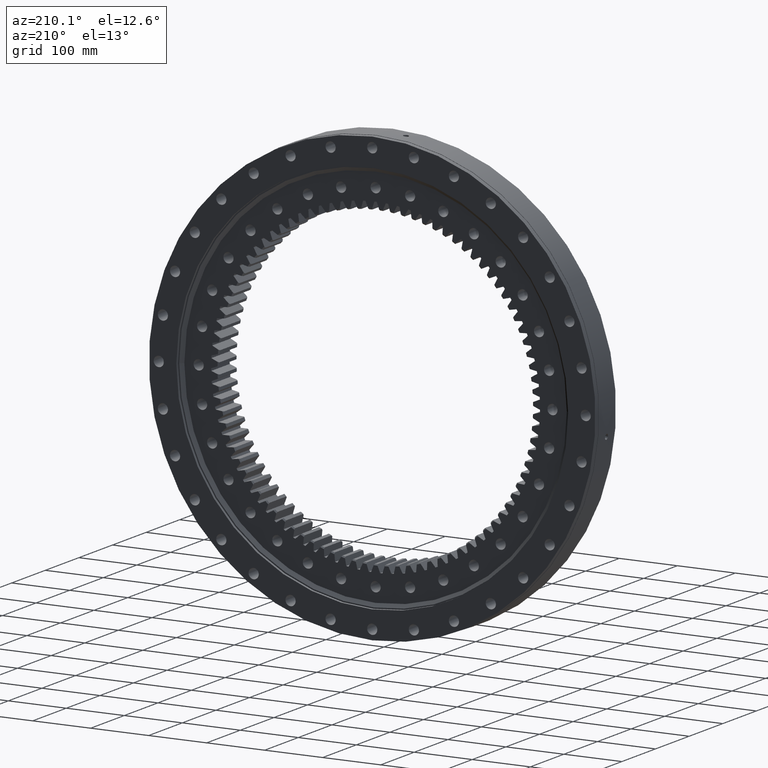
[diagram: clean part render]
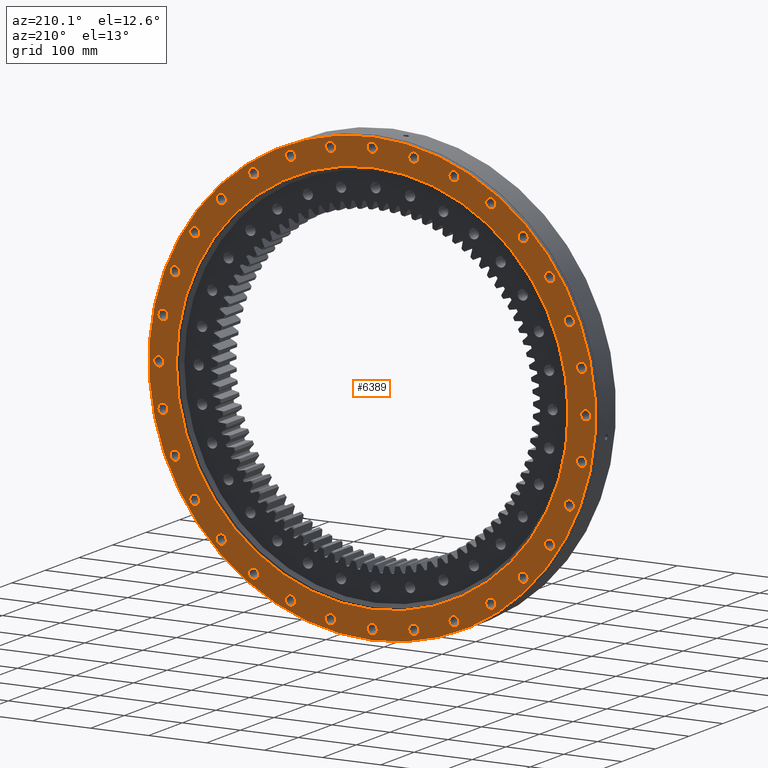
[diagram: same view with one face highlighted and labeled with its STEP entity id]
A machine part, auxiliary view. The second image highlights one B-rep face of the part: STEP entity #6389.
In plain terms, the highlighted planar face has unit normal (0, -1, -0).
Its self-contained STEP definition (entity closure, byte-faithful):
#53 = EDGE_CURVE ( 'NONE', #15093, #7583, #17355, .T. ) ;
#57 = AXIS2_PLACEMENT_3D ( 'NONE', #26071, #26327, #21889 ) ;
#61 = DIRECTION ( 'NONE',  ( 1.173697223544192200E-016, -1.000000000000000000, -3.494217355385783800E-017 ) ) ;
#120 = ORIENTED_EDGE ( 'NONE', *, *, #18874, .T. ) ;
#198 = CIRCLE ( 'NONE', #5928, 8.749999999999985800 ) ;
#425 = VERTEX_POINT ( 'NONE', #16326 ) ;
#427 = VERTEX_POINT ( 'NONE', #26651 ) ;
#432 = AXIS2_PLACEMENT_3D ( 'NONE', #5036, #21108, #14850 ) ;
#479 = DIRECTION ( 'NONE',  ( 1.173697223544192200E-016, -1.000000000000000000, -3.494217355385783800E-017 ) ) ;
#532 = CARTESIAN_POINT ( 'NONE',  ( -305.9808173273355000, 35.00000000000001400, -204.4498457512152600 ) ) ;
#573 = DIRECTION ( 'NONE',  ( 1.173697223544192200E-016, -1.000000000000000000, -3.494217355385783800E-017 ) ) ;
#624 = CARTESIAN_POINT ( 'NONE',  ( 339.9876679641550400, 35.00000000000009200, -140.8275031103496500 ) ) ;
#656 = DIRECTION ( 'NONE',  ( 0.1950903220161289100, 0.0000000000000000000, 0.9807852804032304300 ) ) ;
#661 = VERTEX_POINT ( 'NONE', #23640 ) ;
#674 = DIRECTION ( 'NONE',  ( -0.3826834323650777900, 0.0000000000000000000, 0.9238795325112918500 ) ) ;
#681 = DIRECTION ( 'NONE',  ( 1.173697223544192200E-016, -1.000000000000000000, -3.494217355385783800E-017 ) ) ;
#691 = EDGE_LOOP ( 'NONE', ( #15646, #1943 ) ) ;
#692 = DIRECTION ( 'NONE',  ( -0.8314696123025503400, 0.0000000000000000000, -0.5555702330195945200 ) ) ;
#718 = CARTESIAN_POINT ( 'NONE',  ( -305.9808173273371500, 35.00000000000000000, 204.4498457512128500 ) ) ;
#779 = CARTESIAN_POINT ( 'NONE',  ( -204.4498457512142100, 35.00000000000000700, 305.9808173273361800 ) ) ;
#792 = CARTESIAN_POINT ( 'NONE',  ( -71.79323850193253500, 35.00000000000005000, -369.6789831883893400 ) ) ;
#805 = CIRCLE ( 'NONE', #16883, 8.750000000000003600 ) ;
#818 = DIRECTION ( 'NONE',  ( 1.173697223544192200E-016, -1.000000000000000000, -3.494217355385783800E-017 ) ) ;
#838 = CARTESIAN_POINT ( 'NONE',  ( -260.2152954766500600, 35.00000000000000700, 268.9652954766488600 ) ) ;
#909 = DIRECTION ( 'NONE',  ( -0.8314696123025391300, 0.0000000000000000000, 0.5555702330196112800 ) ) ;
#963 = VERTEX_POINT ( 'NONE', #15752 ) ;
#1026 = DIRECTION ( 'NONE',  ( 1.173697223544192200E-016, -1.000000000000000000, -3.494217355385783800E-017 ) ) ;
#1053 = AXIS2_PLACEMENT_3D ( 'NONE', #15140, #18880, #18968 ) ;
#1091 = CIRCLE ( 'NONE', #7674, 8.749999999999980500 ) ;
#1126 = DIRECTION ( 'NONE',  ( -0.5555702330195923000, 0.0000000000000000000, 0.8314696123025517900 ) ) ;
#1138 = CARTESIAN_POINT ( 'NONE',  ( 71.79323850193803500, 35.00000000000006400, -352.1789831883882600 ) ) ;
#1339 = CARTESIAN_POINT ( 'NONE',  ( -314.7308173273371500, 35.00000000000000000, 204.4498457512128500 ) ) ;
#1351 = VERTEX_POINT ( 'NONE', #19757 ) ;
#1429 = CIRCLE ( 'NONE', #17254, 8.749999999999980500 ) ;
#1653 = DIRECTION ( 'NONE',  ( 1.173697223544192200E-016, -1.000000000000000000, -3.494217355385783800E-017 ) ) ;
#1703 = CARTESIAN_POINT ( 'NONE',  ( 204.4498457512096400, 35.00000000000005000, 297.2308173273394800 ) ) ;
#1713 = EDGE_CURVE ( 'NONE', #6237, #18403, #17241, .T. ) ;
#1726 = DIRECTION ( 'NONE',  ( -0.9807852804032324300, 0.0000000000000000000, -0.1950903220161182000 ) ) ;
#1763 = DIRECTION ( 'NONE',  ( 1.173697223544192200E-016, -1.000000000000000000, -3.494217355385783800E-017 ) ) ;
#1767 = CARTESIAN_POINT ( 'NONE',  ( -360.9289831883884300, 35.00000000000000000, -71.79323850193672700 ) ) ;
#1774 = CARTESIAN_POINT ( 'NONE',  ( -5.340505930445682100E-012, 35.00000000000002800, 368.0000000000000000 ) ) ;
#1856 = AXIS2_PLACEMENT_3D ( 'NONE', #21050, #7080, #6695 ) ;
#1943 = ORIENTED_EDGE ( 'NONE', *, *, #17349, .T. ) ;
#2014 = AXIS2_PLACEMENT_3D ( 'NONE', #11977, #12079, #12027 ) ;
#2022 = ORIENTED_EDGE ( 'NONE', *, *, #12074, .T. ) ;
#2092 = EDGE_LOOP ( 'NONE', ( #14915, #2678 ) ) ;
#2099 = DIRECTION ( 'NONE',  ( 5.551115123125782700E-017, -3.604620209821936800E-017, 1.000000000000000000 ) ) ;
#2166 = DIRECTION ( 'NONE',  ( -1.173697223544192200E-016, 1.000000000000000000, 3.494217355385783800E-017 ) ) ;
#2284 = AXIS2_PLACEMENT_3D ( 'NONE', #14309, #17214, #17455 ) ;
#2293 = DIRECTION ( 'NONE',  ( 1.173697223544192200E-016, -1.000000000000000000, -3.494217355385783800E-017 ) ) ;
#2314 = CARTESIAN_POINT ( 'NONE',  ( 297.2308173273386300, 35.00000000000008500, -204.4498457512107200 ) ) ;
#2345 = CARTESIAN_POINT ( 'NONE',  ( -4.107940282404677800E-015, 35.00000000000004300, -1.683012835122259200E-016 ) ) ;
#2357 = CARTESIAN_POINT ( 'NONE',  ( 369.6789831883879700, 35.00000000000008500, 71.79323850193934200 ) ) ;
#2398 = AXIS2_PLACEMENT_3D ( 'NONE', #4045, #16458, #23013 ) ;
#2406 = EDGE_CURVE ( 'NONE', #7583, #15093, #14368, .T. ) ;
#2455 = VERTEX_POINT ( 'NONE', #23734 ) ;
#2464 = EDGE_CURVE ( 'NONE', #12967, #6723, #1091, .T. ) ;
#2518 = AXIS2_PLACEMENT_3D ( 'NONE', #10934, #11024, #11113 ) ;
#2523 = CIRCLE ( 'NONE', #13008, 8.749999999999980500 ) ;
#2565 = CIRCLE ( 'NONE', #13291, 8.749999999999998200 ) ;
#2607 = AXIS2_PLACEMENT_3D ( 'NONE', #624, #7112, #25419 ) ;
#2616 = CARTESIAN_POINT ( 'NONE',  ( 368.0000000000000000, 35.00000000000008500, 4.052755833543389800E-012 ) ) ;
#2678 = ORIENTED_EDGE ( 'NONE', *, *, #8153, .T. ) ;
#2741 = CIRCLE ( 'NONE', #24836, 8.750000000000021300 ) ;
#2792 = VERTEX_POINT ( 'NONE', #14258 ) ;
#2811 = AXIS2_PLACEMENT_3D ( 'NONE', #10122, #10119, #10090 ) ;
#2917 = CIRCLE ( 'NONE', #26176, 8.749999999999980500 ) ;
#2935 = ORIENTED_EDGE ( 'NONE', *, *, #5127, .T. ) ;
#3104 = ORIENTED_EDGE ( 'NONE', *, *, #15804, .T. ) ;
#3236 = CARTESIAN_POINT ( 'NONE',  ( -5.340505930445682100E-012, 35.00000000000002800, 368.0000000000000000 ) ) ;
#3280 = AXIS2_PLACEMENT_3D ( 'NONE', #23575, #16074, #18110 ) ;
#3304 = DIRECTION ( 'NONE',  ( 1.173697223544192200E-016, -1.000000000000000000, -3.494217355385783800E-017 ) ) ;
#3306 = CIRCLE ( 'NONE', #432, 8.750000000000017800 ) ;
#3307 = DIRECTION ( 'NONE',  ( 5.551115123129761500E-017, 0.0000000000000000000, 1.000000000000000000 ) ) ;
#3360 = CIRCLE ( 'NONE', #11993, 8.749999999999978700 ) ;
#3441 = ORIENTED_EDGE ( 'NONE', *, *, #16510, .T. ) ;
#3514 = AXIS2_PLACEMENT_3D ( 'NONE', #24696, #24160, #11606 ) ;
#3537 = ORIENTED_EDGE ( 'NONE', *, *, #2464, .T. ) ;
#3540 = EDGE_CURVE ( 'NONE', #6723, #12967, #22649, .T. ) ;
#3638 = AXIS2_PLACEMENT_3D ( 'NONE', #8151, #8158, #8186 ) ;
#3669 = CARTESIAN_POINT ( 'NONE',  ( 297.2308173273341400, 35.00000000000007100, 204.4498457512173700 ) ) ;
#3754 = AXIS2_PLACEMENT_3D ( 'NONE', #18465, #18409, #18373 ) ;
#3762 = DIRECTION ( 'NONE',  ( 1.173697223544192200E-016, -1.000000000000000000, -3.494217355385783800E-017 ) ) ;
#3827 = VERTEX_POINT ( 'NONE', #8056 ) ;
#3862 = DIRECTION ( 'NONE',  ( 1.173697223544192200E-016, -1.000000000000000000, -3.494217355385783800E-017 ) ) ;
#3890 = VERTEX_POINT ( 'NONE', #10471 ) ;
#3908 = AXIS2_PLACEMENT_3D ( 'NONE', #15667, #15700, #15759 ) ;
#3980 = EDGE_LOOP ( 'NONE', ( #15338, #26232 ) ) ;
#4015 = CARTESIAN_POINT ( 'NONE',  ( -305.9808173273371500, 35.00000000000000000, 204.4498457512128500 ) ) ;
#4045 = CARTESIAN_POINT ( 'NONE',  ( 140.8275031103484600, 35.00000000000004300, 339.9876679641555500 ) ) ;
#4066 = EDGE_CURVE ( 'NONE', #18403, #6237, #20520, .T. ) ;
#4088 = CARTESIAN_POINT ( 'NONE',  ( -204.4498457512142100, 35.00000000000000700, 305.9808173273361800 ) ) ;
#4100 = DIRECTION ( 'NONE',  ( 1.173697223544192200E-016, -1.000000000000000000, -3.494217355385783800E-017 ) ) ;
#4107 = DIRECTION ( 'NONE',  ( 1.173697223544192200E-016, -1.000000000000000000, -3.494217355385783800E-017 ) ) ;
#4114 = ORIENTED_EDGE ( 'NONE', *, *, #12952, .T. ) ;
#4168 = DIRECTION ( 'NONE',  ( 0.5555702330195967400, 0.0000000000000000000, -0.8314696123025490100 ) ) ;
#4173 = DIRECTION ( 'NONE',  ( -0.5555702330195923000, 0.0000000000000000000, 0.8314696123025517900 ) ) ;
#4176 = CIRCLE ( 'NONE', #8125, 8.750000000000000000 ) ;
#4223 = EDGE_CURVE ( 'NONE', #22547, #13693, #19752, .T. ) ;
#4287 = DIRECTION ( 'NONE',  ( 1.173697223544192200E-016, -1.000000000000000000, -3.494217355385783800E-017 ) ) ;
#4290 = DIRECTION ( 'NONE',  ( -0.8314696123025391300, 0.0000000000000000000, 0.5555702330196112800 ) ) ;
#4358 = DIRECTION ( 'NONE',  ( -0.9238795325112907400, 0.0000000000000000000, -0.3826834323650805100 ) ) ;
#4359 = ORIENTED_EDGE ( 'NONE', *, *, #19890, .T. ) ;
#4380 = CARTESIAN_POINT ( 'NONE',  ( -140.8275031103533200, 35.00000000000001400, 339.9876679641533900 ) ) ;
#4399 = CARTESIAN_POINT ( 'NONE',  ( 260.2152954766461900, 35.00000000000006400, 260.2152954766528400 ) ) ;
#4458 = DIRECTION ( 'NONE',  ( 1.173697223544192200E-016, -1.000000000000000000, -3.494217355385783800E-017 ) ) ;
#4491 = CARTESIAN_POINT ( 'NONE',  ( -339.9876679641529300, 35.00000000000000700, -140.8275031103545400 ) ) ;
#4495 = DIRECTION ( 'NONE',  ( 1.173697223544192200E-016, -1.000000000000000000, -3.494217355385783800E-017 ) ) ;
#4521 = AXIS2_PLACEMENT_3D ( 'NONE', #18118, #1653, #16083 ) ;
#4588 = DIRECTION ( 'NONE',  ( 0.7071067811865474600, 0.0000000000000000000, 0.7071067811865474600 ) ) ;
#4592 = VERTEX_POINT ( 'NONE', #25753 ) ;
#4648 = AXIS2_PLACEMENT_3D ( 'NONE', #14497, #14672, #14761 ) ;
#4690 = CARTESIAN_POINT ( 'NONE',  ( -260.2152954766479500, 35.00000000000002100, -260.2152954766510200 ) ) ;
#4741 = CIRCLE ( 'NONE', #3514, 8.750000000000001800 ) ;
#4807 = EDGE_LOOP ( 'NONE', ( #26279, #20529 ) ) ;
#4843 = CARTESIAN_POINT ( 'NONE',  ( 71.79323850193014800, 35.00000000000003600, 369.6789831883898500 ) ) ;
#5036 = CARTESIAN_POINT ( 'NONE',  ( 305.9808173273386300, 35.00000000000008500, -204.4498457512107200 ) ) ;
#5043 = CIRCLE ( 'NONE', #9638, 8.750000000000001800 ) ;
#5045 = CIRCLE ( 'NONE', #11208, 8.749999999999998200 ) ;
#5116 = EDGE_LOOP ( 'NONE', ( #12910, #21066 ) ) ;
#5127 = EDGE_CURVE ( 'NONE', #12317, #2792, #15766, .T. ) ;
#5131 = CARTESIAN_POINT ( 'NONE',  ( 71.79323850193013400, 35.00000000000003600, 360.9289831883899100 ) ) ;
#5367 = EDGE_CURVE ( 'NONE', #11601, #23307, #14810, .T. ) ;
#5550 = VERTEX_POINT ( 'NONE', #12838 ) ;
#5552 = EDGE_CURVE ( 'NONE', #22837, #24627, #13559, .T. ) ;
#5640 = VERTEX_POINT ( 'NONE', #11586 ) ;
#5655 = AXIS2_PLACEMENT_3D ( 'NONE', #23060, #16493, #16002 ) ;
#5842 = AXIS2_PLACEMENT_3D ( 'NONE', #3236, #3304, #3307 ) ;
#5928 = AXIS2_PLACEMENT_3D ( 'NONE', #11265, #15358, #11583 ) ;
#5948 = CARTESIAN_POINT ( 'NONE',  ( 71.79323850193014800, 35.00000000000003600, 352.1789831883899100 ) ) ;
#6027 = CARTESIAN_POINT ( 'NONE',  ( -204.4498457512142100, 35.00000000000000700, 314.7308173273361300 ) ) ;
#6204 = CIRCLE ( 'NONE', #2607, 8.750000000000010700 ) ;
#6237 = VERTEX_POINT ( 'NONE', #14896 ) ;
#6343 = CARTESIAN_POINT ( 'NONE',  ( 204.4498457512163700, 35.00000000000007800, -305.9808173273347100 ) ) ;
#6389 = ADVANCED_FACE ( 'NONE', ( #8267, #8162, #8243, #8012, #7990, #8189, #7964, #7944, #7919, #7887, #7864, #7782, #7756, #7655, #7634, #7609, #7602, #7582, #7555, #7532, #7480, #7457, #7378, #7326, #7305, #7273, #7246, #7217, #7132, #7039, #7016, #6972, #6964, #6935 ), #22797, .F. ) ;
#6446 = EDGE_LOOP ( 'NONE', ( #7560, #8099 ) ) ;
#6559 = ORIENTED_EDGE ( 'NONE', *, *, #5552, .T. ) ;
#6617 = EDGE_LOOP ( 'NONE', ( #12448, #23144 ) ) ;
#6673 = DIRECTION ( 'NONE',  ( 5.551115123129761500E-017, 0.0000000000000000000, 1.000000000000000000 ) ) ;
#6683 = AXIS2_PLACEMENT_3D ( 'NONE', #18795, #18824, #18860 ) ;
#6695 = DIRECTION ( 'NONE',  ( 0.1950903220161212500, 0.0000000000000000000, -0.9807852804032317600 ) ) ;
#6723 = VERTEX_POINT ( 'NONE', #9769 ) ;
#6762 = AXIS2_PLACEMENT_3D ( 'NONE', #4380, #4287, #674 ) ;
#6797 = VERTEX_POINT ( 'NONE', #24272 ) ;
#6820 = CARTESIAN_POINT ( 'NONE',  ( 348.7376679641518000, 35.00000000000007800, 140.8275031103570400 ) ) ;
#6872 = CIRCLE ( 'NONE', #6762, 8.750000000000008900 ) ;
#6916 = ORIENTED_EDGE ( 'NONE', *, *, #19732, .T. ) ;
#6935 = FACE_BOUND ( 'NONE', #10656, .T. ) ;
#6964 = FACE_OUTER_BOUND ( 'NONE', #22256, .T. ) ;
#6972 = FACE_BOUND ( 'NONE', #17122, .T. ) ;
#7005 = VERTEX_POINT ( 'NONE', #23642 ) ;
#7016 = FACE_BOUND ( 'NONE', #16572, .T. ) ;
#7039 = FACE_BOUND ( 'NONE', #24473, .T. ) ;
#7079 = AXIS2_PLACEMENT_3D ( 'NONE', #1774, #2293, #6673 ) ;
#7080 = DIRECTION ( 'NONE',  ( 1.173697223544192200E-016, -1.000000000000000000, -3.494217355385783800E-017 ) ) ;
#7084 = CARTESIAN_POINT ( 'NONE',  ( 331.2376679641550400, 35.00000000000009200, -140.8275031103496500 ) ) ;
#7095 = CARTESIAN_POINT ( 'NONE',  ( -204.4498457512118300, 35.00000000000003600, -305.9808173273379500 ) ) ;
#7112 = DIRECTION ( 'NONE',  ( 1.173697223544192200E-016, -1.000000000000000000, -3.494217355385783800E-017 ) ) ;
#7132 = FACE_BOUND ( 'NONE', #11230, .T. ) ;
#7188 = AXIS2_PLACEMENT_3D ( 'NONE', #718, #818, #909 ) ;
#7217 = FACE_BOUND ( 'NONE', #16542, .T. ) ;
#7219 = VERTEX_POINT ( 'NONE', #1339 ) ;
#7246 = FACE_BOUND ( 'NONE', #2092, .T. ) ;
#7262 = CIRCLE ( 'NONE', #21322, 8.750000000000019500 ) ;
#7273 = FACE_BOUND ( 'NONE', #17965, .T. ) ;
#7305 = FACE_BOUND ( 'NONE', #4807, .T. ) ;
#7308 = ORIENTED_EDGE ( 'NONE', *, *, #20139, .T. ) ;
#7326 = FACE_BOUND ( 'NONE', #10569, .T. ) ;
#7341 = CARTESIAN_POINT ( 'NONE',  ( 1.726385294162958600E-014, 35.00000000000002800, 385.0000000000000000 ) ) ;
#7378 = FACE_BOUND ( 'NONE', #3980, .T. ) ;
#7444 = AXIS2_PLACEMENT_3D ( 'NONE', #4088, #4100, #4173 ) ;
#7457 = FACE_BOUND ( 'NONE', #24469, .T. ) ;
#7480 = FACE_BOUND ( 'NONE', #17295, .T. ) ;
#7532 = FACE_BOUND ( 'NONE', #22795, .T. ) ;
#7555 = FACE_BOUND ( 'NONE', #26475, .T. ) ;
#7560 = ORIENTED_EDGE ( 'NONE', *, *, #26686, .T. ) ;
#7573 = CIRCLE ( 'NONE', #19949, 8.750000000000001800 ) ;
#7582 = FACE_BOUND ( 'NONE', #6617, .T. ) ;
#7583 = VERTEX_POINT ( 'NONE', #12848 ) ;
#7602 = FACE_BOUND ( 'NONE', #24268, .T. ) ;
#7609 = FACE_BOUND ( 'NONE', #13281, .T. ) ;
#7618 = CARTESIAN_POINT ( 'NONE',  ( -251.4652954766479800, 35.00000000000002100, -260.2152954766510200 ) ) ;
#7634 = FACE_BOUND ( 'NONE', #12120, .T. ) ;
#7655 = FACE_BOUND ( 'NONE', #24490, .T. ) ;
#7669 = DIRECTION ( 'NONE',  ( -0.3826834323650962800, 0.0000000000000000000, -0.9238795325112840700 ) ) ;
#7674 = AXIS2_PLACEMENT_3D ( 'NONE', #15691, #15675, #15639 ) ;
#7726 = CARTESIAN_POINT ( 'NONE',  ( 368.0000000000000000, 35.00000000000008500, 4.052755833543389800E-012 ) ) ;
#7747 = DIRECTION ( 'NONE',  ( 1.173697223544192200E-016, -1.000000000000000000, -3.494217355385783800E-017 ) ) ;
#7756 = FACE_BOUND ( 'NONE', #17853, .T. ) ;
#7770 = DIRECTION ( 'NONE',  ( 1.000000000000000000, 0.0000000000000000000, -3.546992490074357700E-015 ) ) ;
#7782 = FACE_BOUND ( 'NONE', #16190, .T. ) ;
#7864 = FACE_BOUND ( 'NONE', #6446, .T. ) ;
#7865 = ORIENTED_EDGE ( 'NONE', *, *, #53, .T. ) ;
#7873 = AXIS2_PLACEMENT_3D ( 'NONE', #26596, #26614, #23300 ) ;
#7887 = FACE_BOUND ( 'NONE', #5116, .T. ) ;
#7919 = FACE_BOUND ( 'NONE', #10196, .T. ) ;
#7944 = FACE_BOUND ( 'NONE', #10071, .T. ) ;
#7964 = FACE_BOUND ( 'NONE', #9724, .T. ) ;
#7970 = VERTEX_POINT ( 'NONE', #5948 ) ;
#7974 = DIRECTION ( 'NONE',  ( 1.000000000000000000, 0.0000000000000000000, -3.546992490074357700E-015 ) ) ;
#7990 = FACE_BOUND ( 'NONE', #17809, .T. ) ;
#8012 = FACE_BOUND ( 'NONE', #14043, .T. ) ;
#8056 = CARTESIAN_POINT ( 'NONE',  ( -348.7376679641540700, 34.99999999999999300, 140.8275031103518400 ) ) ;
#8061 = CARTESIAN_POINT ( 'NONE',  ( 260.2152954766518700, 35.00000000000007800, -251.4652954766471000 ) ) ;
#8099 = ORIENTED_EDGE ( 'NONE', *, *, #13828, .T. ) ;
#8125 = AXIS2_PLACEMENT_3D ( 'NONE', #24944, #9520, #21537 ) ;
#8151 = CARTESIAN_POINT ( 'NONE',  ( 260.2152954766461900, 35.00000000000006400, 260.2152954766528400 ) ) ;
#8153 = EDGE_CURVE ( 'NONE', #12273, #12827, #19814, .T. ) ;
#8155 = CIRCLE ( 'NONE', #8522, 8.750000000000021300 ) ;
#8158 = DIRECTION ( 'NONE',  ( 1.173697223544192200E-016, -1.000000000000000000, -3.494217355385783800E-017 ) ) ;
#8162 = FACE_BOUND ( 'NONE', #8880, .T. ) ;
#8186 = DIRECTION ( 'NONE',  ( 0.7071067811865474600, 0.0000000000000000000, 0.7071067811865474600 ) ) ;
#8189 = FACE_BOUND ( 'NONE', #691, .T. ) ;
#8243 = FACE_BOUND ( 'NONE', #8771, .T. ) ;
#8260 = CARTESIAN_POINT ( 'NONE',  ( -376.7500000000000000, 35.00000000000000000, -1.480070592690161200E-012 ) ) ;
#8267 = FACE_BOUND ( 'NONE', #11945, .T. ) ;
#8425 = CIRCLE ( 'NONE', #11453, 8.749999999999991100 ) ;
#8427 = CIRCLE ( 'NONE', #17265, 8.749999999999998200 ) ;
#8522 = AXIS2_PLACEMENT_3D ( 'NONE', #20588, #681, #7669 ) ;
#8569 = CARTESIAN_POINT ( 'NONE',  ( 339.9876679641550400, 35.00000000000009200, -140.8275031103496500 ) ) ;
#8736 = CIRCLE ( 'NONE', #4648, 8.750000000000016000 ) ;
#8771 = EDGE_LOOP ( 'NONE', ( #9801, #18423 ) ) ;
#8796 = VERTEX_POINT ( 'NONE', #16675 ) ;
#8804 = CIRCLE ( 'NONE', #24271, 8.750000000000019500 ) ;
#8863 = CARTESIAN_POINT ( 'NONE',  ( -260.2152954766500600, 35.00000000000000700, 251.4652954766489200 ) ) ;
#8880 = EDGE_LOOP ( 'NONE', ( #26164, #15540 ) ) ;
#8975 = VERTEX_POINT ( 'NONE', #24439 ) ;
#9031 = VERTEX_POINT ( 'NONE', #13446 ) ;
#9092 = VERTEX_POINT ( 'NONE', #13154 ) ;
#9114 = VERTEX_POINT ( 'NONE', #8260 ) ;
#9199 = ORIENTED_EDGE ( 'NONE', *, *, #21505, .T. ) ;
#9236 = CARTESIAN_POINT ( 'NONE',  ( 2.764523587640431800E-012, 35.00000000000005700, -376.7500000000000000 ) ) ;
#9266 = CIRCLE ( 'NONE', #3638, 8.749999999999998200 ) ;
#9450 = VERTEX_POINT ( 'NONE', #10046 ) ;
#9520 = DIRECTION ( 'NONE',  ( 1.173697223544192200E-016, -1.000000000000000000, -3.494217355385783800E-017 ) ) ;
#9562 = EDGE_CURVE ( 'NONE', #13693, #22547, #8425, .T. ) ;
#9590 = ORIENTED_EDGE ( 'NONE', *, *, #26028, .T. ) ;
#9638 = AXIS2_PLACEMENT_3D ( 'NONE', #532, #573, #692 ) ;
#9658 = CARTESIAN_POINT ( 'NONE',  ( -71.79323850193549100, 35.00000000000002100, 360.9289831883887100 ) ) ;
#9664 = DIRECTION ( 'NONE',  ( 1.173697223544192200E-016, -1.000000000000000000, -3.494217355385783800E-017 ) ) ;
#9701 = EDGE_CURVE ( 'NONE', #5640, #2455, #6872, .T. ) ;
#9717 = DIRECTION ( 'NONE',  ( -0.1950903220161151500, 0.0000000000000000000, 0.9807852804032329800 ) ) ;
#9724 = EDGE_LOOP ( 'NONE', ( #16672, #26646 ) ) ;
#9769 = CARTESIAN_POINT ( 'NONE',  ( 2.766566598736232900E-012, 35.00000000000005700, -359.2500000000000000 ) ) ;
#9801 = ORIENTED_EDGE ( 'NONE', *, *, #11480, .T. ) ;
#9926 = CARTESIAN_POINT ( 'NONE',  ( 1.464095104595265300E-014, 35.00000000000002800, 337.7500000000000000 ) ) ;
#10028 = ORIENTED_EDGE ( 'NONE', *, *, #4223, .T. ) ;
#10046 = CARTESIAN_POINT ( 'NONE',  ( 268.9652954766461300, 35.00000000000006400, 260.2152954766528400 ) ) ;
#10071 = EDGE_LOOP ( 'NONE', ( #19469, #9199 ) ) ;
#10090 = DIRECTION ( 'NONE',  ( -0.9238795325112820800, 0.0000000000000000000, 0.3826834323651012700 ) ) ;
#10119 = DIRECTION ( 'NONE',  ( 1.173697223544192200E-016, -1.000000000000000000, -3.494217355385783800E-017 ) ) ;
#10122 = CARTESIAN_POINT ( 'NONE',  ( -339.9876679641540700, 34.99999999999999300, 140.8275031103518400 ) ) ;
#10186 = ORIENTED_EDGE ( 'NONE', *, *, #16671, .T. ) ;
#10196 = EDGE_LOOP ( 'NONE', ( #11698, #17558 ) ) ;
#10225 = AXIS2_PLACEMENT_3D ( 'NONE', #2345, #2166, #2099 ) ;
#10228 = CIRCLE ( 'NONE', #14779, 8.750000000000008900 ) ;
#10237 = ORIENTED_EDGE ( 'NONE', *, *, #24614, .T. ) ;
#10261 = ORIENTED_EDGE ( 'NONE', *, *, #16762, .T. ) ;
#10327 = DIRECTION ( 'NONE',  ( 1.173697223544192200E-016, -1.000000000000000000, -3.494217355385783800E-017 ) ) ;
#10337 = VERTEX_POINT ( 'NONE', #7341 ) ;
#10366 = EDGE_CURVE ( 'NONE', #14254, #8796, #2741, .T. ) ;
#10373 = DIRECTION ( 'NONE',  ( 0.7071067811865412400, 0.0000000000000000000, -0.7071067811865539000 ) ) ;
#10416 = VERTEX_POINT ( 'NONE', #8061 ) ;
#10471 = CARTESIAN_POINT ( 'NONE',  ( 140.8275031103558500, 35.00000000000007100, -331.2376679641523100 ) ) ;
#10538 = DIRECTION ( 'NONE',  ( -0.3826834323650962800, 0.0000000000000000000, -0.9238795325112840700 ) ) ;
#10543 = AXIS2_PLACEMENT_3D ( 'NONE', #20905, #20972, #11928 ) ;
#10569 = EDGE_LOOP ( 'NONE', ( #24967, #120 ) ) ;
#10631 = CIRCLE ( 'NONE', #12122, 8.750000000000001800 ) ;
#10633 = DIRECTION ( 'NONE',  ( -0.9238795325112907400, 0.0000000000000000000, -0.3826834323650805100 ) ) ;
#10656 = EDGE_LOOP ( 'NONE', ( #13925, #21580 ) ) ;
#10683 = ORIENTED_EDGE ( 'NONE', *, *, #23185, .T. ) ;
#10769 = AXIS2_PLACEMENT_3D ( 'NONE', #21836, #22929, #19665 ) ;
#10887 = AXIS2_PLACEMENT_3D ( 'NONE', #16714, #16679, #16588 ) ;
#10899 = CARTESIAN_POINT ( 'NONE',  ( -359.2500000000000000, 35.00000000000000000, -1.482113603785962100E-012 ) ) ;
#10922 = EDGE_CURVE ( 'NONE', #4592, #21279, #26641, .T. ) ;
#10934 = CARTESIAN_POINT ( 'NONE',  ( 260.2152954766518700, 35.00000000000007800, -260.2152954766470400 ) ) ;
#10941 = DIRECTION ( 'NONE',  ( -0.1950903220161151500, 0.0000000000000000000, 0.9807852804032329800 ) ) ;
#11024 = DIRECTION ( 'NONE',  ( 1.173697223544192200E-016, -1.000000000000000000, -3.494217355385783800E-017 ) ) ;
#11113 = DIRECTION ( 'NONE',  ( 0.7071067811865412400, 0.0000000000000000000, -0.7071067811865539000 ) ) ;
#11195 = VERTEX_POINT ( 'NONE', #7084 ) ;
#11208 = AXIS2_PLACEMENT_3D ( 'NONE', #11388, #11469, #11627 ) ;
#11213 = CARTESIAN_POINT ( 'NONE',  ( -71.79323850193547700, 35.00000000000002100, 352.1789831883887700 ) ) ;
#11228 = CARTESIAN_POINT ( 'NONE',  ( -352.1789831883891700, 35.00000000000000000, 71.79323850193384300 ) ) ;
#11230 = EDGE_LOOP ( 'NONE', ( #25526, #4359 ) ) ;
#11242 = DIRECTION ( 'NONE',  ( -1.000000000000000000, 0.0000000000000000000, 1.052995516776068200E-014 ) ) ;
#11255 = VERTEX_POINT ( 'NONE', #18341 ) ;
#11265 = CARTESIAN_POINT ( 'NONE',  ( -204.4498457512118300, 35.00000000000003600, -305.9808173273379500 ) ) ;
#11290 = DIRECTION ( 'NONE',  ( 1.173697223544192200E-016, -1.000000000000000000, -3.494217355385783800E-017 ) ) ;
#11388 = CARTESIAN_POINT ( 'NONE',  ( -260.2152954766500600, 35.00000000000000700, 260.2152954766489200 ) ) ;
#11432 = DIRECTION ( 'NONE',  ( -0.5555702330196112800, 0.0000000000000000000, -0.8314696123025391300 ) ) ;
#11448 = CARTESIAN_POINT ( 'NONE',  ( -71.79323850193549100, 35.00000000000002100, 360.9289831883887100 ) ) ;
#11453 = AXIS2_PLACEMENT_3D ( 'NONE', #17586, #17638, #16930 ) ;
#11455 = DIRECTION ( 'NONE',  ( 1.173697223544192200E-016, -1.000000000000000000, -3.494217355385783800E-017 ) ) ;
#11469 = DIRECTION ( 'NONE',  ( 1.173697223544192200E-016, -1.000000000000000000, -3.494217355385783800E-017 ) ) ;
#11480 = EDGE_CURVE ( 'NONE', #25312, #15483, #23582, .T. ) ;
#11507 = DIRECTION ( 'NONE',  ( -1.000000000000000000, 0.0000000000000000000, 1.052995516776068200E-014 ) ) ;
#11583 = DIRECTION ( 'NONE',  ( -0.5555702330196112800, 0.0000000000000000000, -0.8314696123025391300 ) ) ;
#11586 = CARTESIAN_POINT ( 'NONE',  ( -140.8275031103533200, 35.00000000000001400, 348.7376679641533300 ) ) ;
#11601 = VERTEX_POINT ( 'NONE', #17878 ) ;
#11606 = DIRECTION ( 'NONE',  ( 0.5555702330196040700, 0.0000000000000000000, 0.8314696123025440100 ) ) ;
#11627 = DIRECTION ( 'NONE',  ( -0.7071067811865412400, 0.0000000000000000000, 0.7071067811865539000 ) ) ;
#11638 = DIRECTION ( 'NONE',  ( 1.173697223544192200E-016, -1.000000000000000000, -3.494217355385783800E-017 ) ) ;
#11667 = CARTESIAN_POINT ( 'NONE',  ( -368.0000000000000000, 35.00000000000000000, -1.480579616006073000E-012 ) ) ;
#11698 = ORIENTED_EDGE ( 'NONE', *, *, #22492, .T. ) ;
#11717 = ORIENTED_EDGE ( 'NONE', *, *, #15376, .T. ) ;
#11718 = VERTEX_POINT ( 'NONE', #11228 ) ;
#11812 = VERTEX_POINT ( 'NONE', #10899 ) ;
#11831 = VERTEX_POINT ( 'NONE', #16231 ) ;
#11841 = AXIS2_PLACEMENT_3D ( 'NONE', #22834, #22747, #23014 ) ;
#11928 = DIRECTION ( 'NONE',  ( 5.551115123125782700E-017, -4.108893503423969400E-017, 1.000000000000000000 ) ) ;
#11945 = EDGE_LOOP ( 'NONE', ( #14688, #4114 ) ) ;
#11977 = CARTESIAN_POINT ( 'NONE',  ( 305.9808173273341400, 35.00000000000007100, 204.4498457512173700 ) ) ;
#11993 = AXIS2_PLACEMENT_3D ( 'NONE', #18130, #18217, #17789 ) ;
#12027 = DIRECTION ( 'NONE',  ( 0.8314696123025455700, 0.0000000000000000000, 0.5555702330196017300 ) ) ;
#12068 = EDGE_CURVE ( 'NONE', #16570, #9450, #19971, .T. ) ;
#12074 = EDGE_CURVE ( 'NONE', #13460, #7970, #19728, .T. ) ;
#12079 = DIRECTION ( 'NONE',  ( 1.173697223544192200E-016, -1.000000000000000000, -3.494217355385783800E-017 ) ) ;
#12120 = EDGE_LOOP ( 'NONE', ( #19135, #24711 ) ) ;
#12122 = AXIS2_PLACEMENT_3D ( 'NONE', #23404, #23524, #23623 ) ;
#12131 = CARTESIAN_POINT ( 'NONE',  ( -140.8275031103508200, 35.00000000000004300, -339.9876679641544700 ) ) ;
#12137 = CARTESIAN_POINT ( 'NONE',  ( 204.4498457512096400, 35.00000000000005000, 305.9808173273394200 ) ) ;
#12159 = DIRECTION ( 'NONE',  ( 1.173697223544192200E-016, -1.000000000000000000, -3.494217355385783800E-017 ) ) ;
#12214 = DIRECTION ( 'NONE',  ( 0.5555702330196040700, 0.0000000000000000000, 0.8314696123025440100 ) ) ;
#12273 = VERTEX_POINT ( 'NONE', #3669 ) ;
#12292 = EDGE_CURVE ( 'NONE', #17592, #5550, #18709, .T. ) ;
#12304 = CARTESIAN_POINT ( 'NONE',  ( -7.204178666183995700E-014, 35.00000000000005700, -385.0000000000000000 ) ) ;
#12314 = EDGE_CURVE ( 'NONE', #20680, #6797, #18949, .T. ) ;
#12317 = VERTEX_POINT ( 'NONE', #15612 ) ;
#12448 = ORIENTED_EDGE ( 'NONE', *, *, #15373, .T. ) ;
#12537 = AXIS2_PLACEMENT_3D ( 'NONE', #17107, #17867, #25006 ) ;
#12601 = CARTESIAN_POINT ( 'NONE',  ( -360.9289831883891700, 35.00000000000000000, 71.79323850193384300 ) ) ;
#12653 = CARTESIAN_POINT ( 'NONE',  ( -369.6789831883884300, 35.00000000000000000, -71.79323850193672700 ) ) ;
#12654 = CIRCLE ( 'NONE', #13334, 8.749999999999980500 ) ;
#12673 = DIRECTION ( 'NONE',  ( 0.9238795325112851800, 0.0000000000000000000, -0.3826834323650935600 ) ) ;
#12827 = VERTEX_POINT ( 'NONE', #16862 ) ;
#12838 = CARTESIAN_POINT ( 'NONE',  ( -268.9652954766479500, 35.00000000000002100, -260.2152954766510200 ) ) ;
#12848 = CARTESIAN_POINT ( 'NONE',  ( 331.2376679641518500, 35.00000000000007800, 140.8275031103570400 ) ) ;
#12853 = EDGE_CURVE ( 'NONE', #23307, #11601, #15538, .T. ) ;
#12910 = ORIENTED_EDGE ( 'NONE', *, *, #19457, .T. ) ;
#12949 = CIRCLE ( 'NONE', #7444, 8.749999999999985800 ) ;
#12952 = EDGE_CURVE ( 'NONE', #24086, #427, #15516, .T. ) ;
#12953 = CIRCLE ( 'NONE', #4521, 8.750000000000016000 ) ;
#12958 = EDGE_CURVE ( 'NONE', #11195, #963, #15254, .T. ) ;
#12967 = VERTEX_POINT ( 'NONE', #9236 ) ;
#13008 = AXIS2_PLACEMENT_3D ( 'NONE', #2616, #24091, #7974 ) ;
#13090 = AXIS2_PLACEMENT_3D ( 'NONE', #11448, #14326, #10941 ) ;
#13154 = CARTESIAN_POINT ( 'NONE',  ( -297.2308173273355000, 35.00000000000001400, -204.4498457512152600 ) ) ;
#13180 = CARTESIAN_POINT ( 'NONE',  ( -368.0000000000000000, 35.00000000000000000, -1.480579616006073000E-012 ) ) ;
#13242 = CIRCLE ( 'NONE', #16826, 8.749999999999980500 ) ;
#13281 = EDGE_LOOP ( 'NONE', ( #19161, #3537 ) ) ;
#13291 = AXIS2_PLACEMENT_3D ( 'NONE', #16704, #16526, #24504 ) ;
#13312 = ORIENTED_EDGE ( 'NONE', *, *, #2406, .T. ) ;
#13334 = AXIS2_PLACEMENT_3D ( 'NONE', #9658, #9664, #9717 ) ;
#13390 = EDGE_CURVE ( 'NONE', #21258, #7219, #13410, .T. ) ;
#13410 = CIRCLE ( 'NONE', #7188, 8.749999999999985800 ) ;
#13446 = CARTESIAN_POINT ( 'NONE',  ( -352.1789831883884900, 35.00000000000000000, -71.79323850193672700 ) ) ;
#13460 = VERTEX_POINT ( 'NONE', #4843 ) ;
#13507 = DIRECTION ( 'NONE',  ( 0.9807852804032297600, 0.0000000000000000000, -0.1950903220161319700 ) ) ;
#13552 = AXIS2_PLACEMENT_3D ( 'NONE', #1767, #1763, #1726 ) ;
#13554 = ORIENTED_EDGE ( 'NONE', *, *, #16092, .T. ) ;
#13559 = CIRCLE ( 'NONE', #26081, 8.749999999999985800 ) ;
#13644 = AXIS2_PLACEMENT_3D ( 'NONE', #20276, #20228, #24425 ) ;
#13693 = VERTEX_POINT ( 'NONE', #1138 ) ;
#13813 = VERTEX_POINT ( 'NONE', #20255 ) ;
#13828 = EDGE_CURVE ( 'NONE', #8975, #9092, #10631, .T. ) ;
#13859 = EDGE_CURVE ( 'NONE', #2455, #5640, #10228, .T. ) ;
#13866 = CIRCLE ( 'NONE', #17024, 8.749999999999985800 ) ;
#13896 = VERTEX_POINT ( 'NONE', #792 ) ;
#13901 = VERTEX_POINT ( 'NONE', #21309 ) ;
#13925 = ORIENTED_EDGE ( 'NONE', *, *, #12853, .T. ) ;
#14043 = EDGE_LOOP ( 'NONE', ( #11717, #18335 ) ) ;
#14048 = VERTEX_POINT ( 'NONE', #25011 ) ;
#14073 = AXIS2_PLACEMENT_3D ( 'NONE', #4399, #4495, #4588 ) ;
#14088 = EDGE_CURVE ( 'NONE', #11831, #13896, #8736, .T. ) ;
#14195 = CIRCLE ( 'NONE', #10769, 8.749999999999980500 ) ;
#14254 = VERTEX_POINT ( 'NONE', #20694 ) ;
#14258 = CARTESIAN_POINT ( 'NONE',  ( -5.338542127297577000E-012, 35.00000000000002800, 359.2500000000000000 ) ) ;
#14309 = CARTESIAN_POINT ( 'NONE',  ( 360.9289831883880300, 35.00000000000008500, 71.79323850193934200 ) ) ;
#14326 = DIRECTION ( 'NONE',  ( 1.173697223544192200E-016, -1.000000000000000000, -3.494217355385783800E-017 ) ) ;
#14368 = CIRCLE ( 'NONE', #7873, 8.749999999999989300 ) ;
#14426 = AXIS2_PLACEMENT_3D ( 'NONE', #8569, #24607, #12673 ) ;
#14497 = CARTESIAN_POINT ( 'NONE',  ( -71.79323850193254900, 35.00000000000005000, -360.9289831883893400 ) ) ;
#14596 = DIRECTION ( 'NONE',  ( -0.9807852804032285400, 0.0000000000000000000, 0.1950903220161380700 ) ) ;
#14672 = DIRECTION ( 'NONE',  ( 1.173697223544192200E-016, -1.000000000000000000, -3.494217355385783800E-017 ) ) ;
#14688 = ORIENTED_EDGE ( 'NONE', *, *, #23270, .T. ) ;
#14719 = VERTEX_POINT ( 'NONE', #25892 ) ;
#14761 = DIRECTION ( 'NONE',  ( -0.1950903220161349600, 0.0000000000000000000, -0.9807852804032289900 ) ) ;
#14771 = CIRCLE ( 'NONE', #13644, 8.749999999999978700 ) ;
#14777 = CIRCLE ( 'NONE', #17575, 8.750000000000016000 ) ;
#14779 = AXIS2_PLACEMENT_3D ( 'NONE', #25278, #26299, #26661 ) ;
#14810 = CIRCLE ( 'NONE', #12537, 337.7500000000000000 ) ;
#14822 = EDGE_CURVE ( 'NONE', #18463, #15000, #5045, .T. ) ;
#14850 = DIRECTION ( 'NONE',  ( 0.8314696123025424600, 0.0000000000000000000, -0.5555702330196061700 ) ) ;
#14860 = DIRECTION ( 'NONE',  ( 1.173697223544192200E-016, -1.000000000000000000, -3.494217355385783800E-017 ) ) ;
#14896 = CARTESIAN_POINT ( 'NONE',  ( 352.1789831883880300, 35.00000000000008500, 71.79323850193934200 ) ) ;
#14915 = ORIENTED_EDGE ( 'NONE', *, *, #22853, .T. ) ;
#15000 = VERTEX_POINT ( 'NONE', #838 ) ;
#15026 = CARTESIAN_POINT ( 'NONE',  ( -204.4498457512118300, 35.00000000000003600, -314.7308173273379500 ) ) ;
#15093 = VERTEX_POINT ( 'NONE', #6820 ) ;
#15140 = CARTESIAN_POINT ( 'NONE',  ( -260.2152954766479500, 35.00000000000002100, -260.2152954766510200 ) ) ;
#15254 = CIRCLE ( 'NONE', #14426, 8.750000000000010700 ) ;
#15338 = ORIENTED_EDGE ( 'NONE', *, *, #24905, .T. ) ;
#15358 = DIRECTION ( 'NONE',  ( 1.173697223544192200E-016, -1.000000000000000000, -3.494217355385783800E-017 ) ) ;
#15373 = EDGE_CURVE ( 'NONE', #3890, #22627, #3360, .T. ) ;
#15376 = EDGE_CURVE ( 'NONE', #15000, #18463, #2565, .T. ) ;
#15410 = CARTESIAN_POINT ( 'NONE',  ( 305.9808173273341400, 35.00000000000007100, 204.4498457512173700 ) ) ;
#15426 = AXIS2_PLACEMENT_3D ( 'NONE', #17100, #479, #656 ) ;
#15444 = DIRECTION ( 'NONE',  ( 1.173697223544192200E-016, -1.000000000000000000, -3.494217355385783800E-017 ) ) ;
#15478 = DIRECTION ( 'NONE',  ( 0.8314696123025455700, 0.0000000000000000000, 0.5555702330196017300 ) ) ;
#15483 = VERTEX_POINT ( 'NONE', #25259 ) ;
#15510 = CARTESIAN_POINT ( 'NONE',  ( 204.4498457512163700, 35.00000000000007800, -314.7308173273347100 ) ) ;
#15516 = CIRCLE ( 'NONE', #13090, 8.749999999999980500 ) ;
#15538 = CIRCLE ( 'NONE', #10543, 337.7500000000000000 ) ;
#15540 = ORIENTED_EDGE ( 'NONE', *, *, #13859, .T. ) ;
#15584 = AXIS2_PLACEMENT_3D ( 'NONE', #4491, #4458, #4358 ) ;
#15612 = CARTESIAN_POINT ( 'NONE',  ( -5.340020207872408600E-012, 35.00000000000002800, 376.7500000000000000 ) ) ;
#15639 = DIRECTION ( 'NONE',  ( -7.038473828917552100E-015, 0.0000000000000000000, -1.000000000000000000 ) ) ;
#15646 = ORIENTED_EDGE ( 'NONE', *, *, #20990, .T. ) ;
#15648 = EDGE_CURVE ( 'NONE', #24627, #22837, #198, .T. ) ;
#15667 = CARTESIAN_POINT ( 'NONE',  ( 305.9808173273386300, 35.00000000000008500, -204.4498457512107200 ) ) ;
#15675 = DIRECTION ( 'NONE',  ( 1.173697223544192200E-016, -1.000000000000000000, -3.494217355385783800E-017 ) ) ;
#15691 = CARTESIAN_POINT ( 'NONE',  ( 2.762559784492326600E-012, 35.00000000000005700, -368.0000000000000000 ) ) ;
#15700 = DIRECTION ( 'NONE',  ( 1.173697223544192200E-016, -1.000000000000000000, -3.494217355385783800E-017 ) ) ;
#15752 = CARTESIAN_POINT ( 'NONE',  ( 348.7376679641549800, 35.00000000000009200, -140.8275031103496500 ) ) ;
#15759 = DIRECTION ( 'NONE',  ( 0.8314696123025424600, 0.0000000000000000000, -0.5555702330196061700 ) ) ;
#15766 = CIRCLE ( 'NONE', #7079, 8.749999999999980500 ) ;
#15804 = EDGE_CURVE ( 'NONE', #10416, #13813, #26016, .T. ) ;
#15912 = EDGE_CURVE ( 'NONE', #11718, #24113, #25089, .T. ) ;
#16002 = DIRECTION ( 'NONE',  ( 0.9807852804032297600, 0.0000000000000000000, -0.1950903220161319700 ) ) ;
#16039 = ORIENTED_EDGE ( 'NONE', *, *, #15648, .T. ) ;
#16074 = DIRECTION ( 'NONE',  ( -1.173697223544192200E-016, 1.000000000000000000, 3.494217355385783800E-017 ) ) ;
#16083 = DIRECTION ( 'NONE',  ( -0.1950903220161349600, 0.0000000000000000000, -0.9807852804032289900 ) ) ;
#16092 = EDGE_CURVE ( 'NONE', #13901, #22112, #24071, .T. ) ;
#16190 = EDGE_LOOP ( 'NONE', ( #23739, #10186 ) ) ;
#16231 = CARTESIAN_POINT ( 'NONE',  ( -71.79323850193253500, 35.00000000000005000, -352.1789831883893400 ) ) ;
#16326 = CARTESIAN_POINT ( 'NONE',  ( 140.8275031103484600, 35.00000000000004300, 348.7376679641554900 ) ) ;
#16428 = AXIS2_PLACEMENT_3D ( 'NONE', #779, #1026, #1126 ) ;
#16458 = DIRECTION ( 'NONE',  ( 1.173697223544192200E-016, -1.000000000000000000, -3.494217355385783800E-017 ) ) ;
#16493 = DIRECTION ( 'NONE',  ( 1.173697223544192200E-016, -1.000000000000000000, -3.494217355385783800E-017 ) ) ;
#16510 = EDGE_CURVE ( 'NONE', #7219, #21258, #20260, .T. ) ;
#16526 = DIRECTION ( 'NONE',  ( 1.173697223544192200E-016, -1.000000000000000000, -3.494217355385783800E-017 ) ) ;
#16542 = EDGE_LOOP ( 'NONE', ( #10683, #22920 ) ) ;
#16570 = VERTEX_POINT ( 'NONE', #26462 ) ;
#16571 = ORIENTED_EDGE ( 'NONE', *, *, #13390, .T. ) ;
#16572 = EDGE_LOOP ( 'NONE', ( #2022, #23595 ) ) ;
#16588 = DIRECTION ( 'NONE',  ( 0.9807852804032307600, 0.0000000000000000000, 0.1950903220161258100 ) ) ;
#16671 = EDGE_CURVE ( 'NONE', #5550, #17592, #19252, .T. ) ;
#16672 = ORIENTED_EDGE ( 'NONE', *, *, #15912, .T. ) ;
#16675 = CARTESIAN_POINT ( 'NONE',  ( -140.8275031103508200, 35.00000000000004300, -348.7376679641544700 ) ) ;
#16679 = DIRECTION ( 'NONE',  ( 1.173697223544192200E-016, -1.000000000000000000, -3.494217355385783800E-017 ) ) ;
#16704 = CARTESIAN_POINT ( 'NONE',  ( -260.2152954766500600, 35.00000000000000700, 260.2152954766489200 ) ) ;
#16714 = CARTESIAN_POINT ( 'NONE',  ( 360.9289831883880300, 35.00000000000008500, 71.79323850193934200 ) ) ;
#16762 = EDGE_CURVE ( 'NONE', #10337, #22999, #18402, .T. ) ;
#16810 = CARTESIAN_POINT ( 'NONE',  ( -204.4498457512118300, 35.00000000000003600, -297.2308173273379500 ) ) ;
#16826 = AXIS2_PLACEMENT_3D ( 'NONE', #11667, #11638, #11507 ) ;
#16862 = CARTESIAN_POINT ( 'NONE',  ( 314.7308173273340800, 35.00000000000007100, 204.4498457512173700 ) ) ;
#16883 = AXIS2_PLACEMENT_3D ( 'NONE', #5131, #14860, #20157 ) ;
#16930 = DIRECTION ( 'NONE',  ( 0.1950903220161212500, 0.0000000000000000000, -0.9807852804032317600 ) ) ;
#17024 = AXIS2_PLACEMENT_3D ( 'NONE', #15410, #15444, #15478 ) ;
#17100 = CARTESIAN_POINT ( 'NONE',  ( 71.79323850193013400, 35.00000000000003600, 360.9289831883899100 ) ) ;
#17107 = CARTESIAN_POINT ( 'NONE',  ( -4.107940282404677800E-015, 35.00000000000004300, 1.222976074385026000E-015 ) ) ;
#17122 = EDGE_LOOP ( 'NONE', ( #2935, #7308 ) ) ;
#17214 = DIRECTION ( 'NONE',  ( 1.173697223544192200E-016, -1.000000000000000000, -3.494217355385783800E-017 ) ) ;
#17241 = CIRCLE ( 'NONE', #10887, 8.750000000000000000 ) ;
#17254 = AXIS2_PLACEMENT_3D ( 'NONE', #13180, #11290, #11242 ) ;
#17265 = AXIS2_PLACEMENT_3D ( 'NONE', #23912, #21009, #10373 ) ;
#17295 = EDGE_LOOP ( 'NONE', ( #22056, #24737 ) ) ;
#17332 = ORIENTED_EDGE ( 'NONE', *, *, #24984, .T. ) ;
#17349 = EDGE_CURVE ( 'NONE', #3827, #14719, #14195, .T. ) ;
#17355 = CIRCLE ( 'NONE', #17655, 8.749999999999989300 ) ;
#17455 = DIRECTION ( 'NONE',  ( 0.9807852804032307600, 0.0000000000000000000, 0.1950903220161258100 ) ) ;
#17514 = CARTESIAN_POINT ( 'NONE',  ( 140.8275031103558500, 35.00000000000007100, -348.7376679641523100 ) ) ;
#17558 = ORIENTED_EDGE ( 'NONE', *, *, #20523, .T. ) ;
#17575 = AXIS2_PLACEMENT_3D ( 'NONE', #6343, #3862, #4168 ) ;
#17586 = CARTESIAN_POINT ( 'NONE',  ( 71.79323850193802100, 35.00000000000006400, -360.9289831883882600 ) ) ;
#17592 = VERTEX_POINT ( 'NONE', #7618 ) ;
#17597 = EDGE_CURVE ( 'NONE', #13896, #11831, #12953, .T. ) ;
#17638 = DIRECTION ( 'NONE',  ( 1.173697223544192200E-016, -1.000000000000000000, -3.494217355385783800E-017 ) ) ;
#17645 = CIRCLE ( 'NONE', #6683, 8.749999999999985800 ) ;
#17655 = AXIS2_PLACEMENT_3D ( 'NONE', #21674, #21583, #21639 ) ;
#17789 = DIRECTION ( 'NONE',  ( 0.3826834323650854500, 0.0000000000000000000, -0.9238795325112885100 ) ) ;
#17809 = EDGE_LOOP ( 'NONE', ( #16571, #3441 ) ) ;
#17853 = EDGE_LOOP ( 'NONE', ( #16039, #6559 ) ) ;
#17864 = CIRCLE ( 'NONE', #10225, 385.0000000000000000 ) ;
#17867 = DIRECTION ( 'NONE',  ( 1.173697223544192200E-016, -1.000000000000000000, -3.494217355385783800E-017 ) ) ;
#17878 = CARTESIAN_POINT ( 'NONE',  ( -6.392878718913666800E-014, 35.00000000000005700, -337.7500000000000000 ) ) ;
#17965 = EDGE_LOOP ( 'NONE', ( #7865, #13312 ) ) ;
#18110 = DIRECTION ( 'NONE',  ( 5.551115123125782700E-017, -3.604620209821936800E-017, 1.000000000000000000 ) ) ;
#18118 = CARTESIAN_POINT ( 'NONE',  ( -71.79323850193254900, 35.00000000000005000, -360.9289831883893400 ) ) ;
#18130 = CARTESIAN_POINT ( 'NONE',  ( 140.8275031103558500, 35.00000000000007100, -339.9876679641523100 ) ) ;
#18216 = EDGE_CURVE ( 'NONE', #24113, #11718, #7262, .T. ) ;
#18217 = DIRECTION ( 'NONE',  ( 1.173697223544192200E-016, -1.000000000000000000, -3.494217355385783800E-017 ) ) ;
#18335 = ORIENTED_EDGE ( 'NONE', *, *, #14822, .T. ) ;
#18341 = CARTESIAN_POINT ( 'NONE',  ( 369.6789831883895700, 35.00000000000008500, -71.79323850193138400 ) ) ;
#18373 = DIRECTION ( 'NONE',  ( -7.038473828917552100E-015, 0.0000000000000000000, -1.000000000000000000 ) ) ;
#18402 = CIRCLE ( 'NONE', #3280, 385.0000000000000000 ) ;
#18403 = VERTEX_POINT ( 'NONE', #2357 ) ;
#18409 = DIRECTION ( 'NONE',  ( 1.173697223544192200E-016, -1.000000000000000000, -3.494217355385783800E-017 ) ) ;
#18423 = ORIENTED_EDGE ( 'NONE', *, *, #23556, .T. ) ;
#18463 = VERTEX_POINT ( 'NONE', #8863 ) ;
#18465 = CARTESIAN_POINT ( 'NONE',  ( 2.762559784492326600E-012, 35.00000000000005700, -368.0000000000000000 ) ) ;
#18622 = EDGE_CURVE ( 'NONE', #661, #425, #4176, .T. ) ;
#18673 = CARTESIAN_POINT ( 'NONE',  ( -369.6789831883891700, 35.00000000000000000, 71.79323850193384300 ) ) ;
#18709 = CIRCLE ( 'NONE', #1053, 8.749999999999998200 ) ;
#18746 = EDGE_CURVE ( 'NONE', #6797, #20680, #3306, .T. ) ;
#18795 = CARTESIAN_POINT ( 'NONE',  ( -360.9289831883884300, 35.00000000000000000, -71.79323850193672700 ) ) ;
#18824 = DIRECTION ( 'NONE',  ( 1.173697223544192200E-016, -1.000000000000000000, -3.494217355385783800E-017 ) ) ;
#18858 = CARTESIAN_POINT ( 'NONE',  ( -331.2376679641529300, 35.00000000000000700, -140.8275031103545400 ) ) ;
#18860 = DIRECTION ( 'NONE',  ( -0.9807852804032324300, 0.0000000000000000000, -0.1950903220161182000 ) ) ;
#18874 = EDGE_CURVE ( 'NONE', #7005, #25989, #2523, .T. ) ;
#18880 = DIRECTION ( 'NONE',  ( 1.173697223544192200E-016, -1.000000000000000000, -3.494217355385783800E-017 ) ) ;
#18889 = AXIS2_PLACEMENT_3D ( 'NONE', #4690, #3762, #25515 ) ;
#18914 = CARTESIAN_POINT ( 'NONE',  ( 71.79323850193803500, 35.00000000000006400, -369.6789831883882000 ) ) ;
#18949 = CIRCLE ( 'NONE', #3908, 8.750000000000017800 ) ;
#18968 = DIRECTION ( 'NONE',  ( -0.7071067811865539000, 0.0000000000000000000, -0.7071067811865412400 ) ) ;
#19035 = AXIS2_PLACEMENT_3D ( 'NONE', #20609, #20780, #20966 ) ;
#19135 = ORIENTED_EDGE ( 'NONE', *, *, #14088, .T. ) ;
#19161 = ORIENTED_EDGE ( 'NONE', *, *, #3540, .T. ) ;
#19252 = CIRCLE ( 'NONE', #18889, 8.749999999999998200 ) ;
#19457 = EDGE_CURVE ( 'NONE', #21279, #4592, #8804, .T. ) ;
#19469 = ORIENTED_EDGE ( 'NONE', *, *, #19997, .T. ) ;
#19572 = ORIENTED_EDGE ( 'NONE', *, *, #18622, .T. ) ;
#19602 = EDGE_CURVE ( 'NONE', #7970, #13460, #805, .T. ) ;
#19665 = DIRECTION ( 'NONE',  ( -0.9238795325112820800, 0.0000000000000000000, 0.3826834323651012700 ) ) ;
#19728 = CIRCLE ( 'NONE', #15426, 8.750000000000003600 ) ;
#19732 = EDGE_CURVE ( 'NONE', #963, #11195, #6204, .T. ) ;
#19752 = CIRCLE ( 'NONE', #1856, 8.749999999999991100 ) ;
#19757 = CARTESIAN_POINT ( 'NONE',  ( 204.4498457512096400, 35.00000000000005000, 314.7308173273394200 ) ) ;
#19814 = CIRCLE ( 'NONE', #2014, 8.749999999999985800 ) ;
#19834 = CIRCLE ( 'NONE', #2811, 8.749999999999980500 ) ;
#19890 = EDGE_CURVE ( 'NONE', #20551, #1351, #4741, .T. ) ;
#19949 = AXIS2_PLACEMENT_3D ( 'NONE', #12137, #12159, #12214 ) ;
#19971 = CIRCLE ( 'NONE', #14073, 8.749999999999998200 ) ;
#19997 = EDGE_CURVE ( 'NONE', #11812, #9114, #1429, .T. ) ;
#20139 = EDGE_CURVE ( 'NONE', #2792, #12317, #26362, .T. ) ;
#20157 = DIRECTION ( 'NONE',  ( 0.1950903220161289100, 0.0000000000000000000, 0.9807852804032304300 ) ) ;
#20228 = DIRECTION ( 'NONE',  ( 1.173697223544192200E-016, -1.000000000000000000, -3.494217355385783800E-017 ) ) ;
#20255 = CARTESIAN_POINT ( 'NONE',  ( 260.2152954766518700, 35.00000000000007800, -268.9652954766470400 ) ) ;
#20260 = CIRCLE ( 'NONE', #26313, 8.749999999999985800 ) ;
#20276 = CARTESIAN_POINT ( 'NONE',  ( 140.8275031103558500, 35.00000000000007100, -339.9876679641523100 ) ) ;
#20520 = CIRCLE ( 'NONE', #2284, 8.750000000000000000 ) ;
#20523 = EDGE_CURVE ( 'NONE', #25530, #9031, #23063, .T. ) ;
#20529 = ORIENTED_EDGE ( 'NONE', *, *, #1713, .T. ) ;
#20551 = VERTEX_POINT ( 'NONE', #1703 ) ;
#20576 = CARTESIAN_POINT ( 'NONE',  ( -297.2308173273372100, 35.00000000000000000, 204.4498457512128500 ) ) ;
#20588 = CARTESIAN_POINT ( 'NONE',  ( -140.8275031103508200, 35.00000000000004300, -339.9876679641544700 ) ) ;
#20609 = CARTESIAN_POINT ( 'NONE',  ( -360.9289831883891700, 35.00000000000000000, 71.79323850193384300 ) ) ;
#20680 = VERTEX_POINT ( 'NONE', #2314 ) ;
#20694 = CARTESIAN_POINT ( 'NONE',  ( -140.8275031103508200, 35.00000000000004300, -331.2376679641544700 ) ) ;
#20780 = DIRECTION ( 'NONE',  ( 1.173697223544192200E-016, -1.000000000000000000, -3.494217355385783800E-017 ) ) ;
#20905 = CARTESIAN_POINT ( 'NONE',  ( -4.107940282404677800E-015, 35.00000000000004300, 1.222976074385026000E-015 ) ) ;
#20966 = DIRECTION ( 'NONE',  ( -0.9807852804032285400, 0.0000000000000000000, 0.1950903220161380700 ) ) ;
#20972 = DIRECTION ( 'NONE',  ( 1.173697223544192200E-016, -1.000000000000000000, -3.494217355385783800E-017 ) ) ;
#20990 = EDGE_CURVE ( 'NONE', #14719, #3827, #19834, .T. ) ;
#21009 = DIRECTION ( 'NONE',  ( 1.173697223544192200E-016, -1.000000000000000000, -3.494217355385783800E-017 ) ) ;
#21050 = CARTESIAN_POINT ( 'NONE',  ( 71.79323850193802100, 35.00000000000006400, -360.9289831883882600 ) ) ;
#21066 = ORIENTED_EDGE ( 'NONE', *, *, #10922, .T. ) ;
#21108 = DIRECTION ( 'NONE',  ( 1.173697223544192200E-016, -1.000000000000000000, -3.494217355385783800E-017 ) ) ;
#21258 = VERTEX_POINT ( 'NONE', #20576 ) ;
#21279 = VERTEX_POINT ( 'NONE', #18858 ) ;
#21309 = CARTESIAN_POINT ( 'NONE',  ( 204.4498457512163700, 35.00000000000007800, -297.2308173273347600 ) ) ;
#21322 = AXIS2_PLACEMENT_3D ( 'NONE', #12601, #61, #14596 ) ;
#21385 = EDGE_CURVE ( 'NONE', #22999, #10337, #17864, .T. ) ;
#21505 = EDGE_CURVE ( 'NONE', #9114, #11812, #13242, .T. ) ;
#21537 = DIRECTION ( 'NONE',  ( 0.3826834323650908900, 0.0000000000000000000, 0.9238795325112862900 ) ) ;
#21580 = ORIENTED_EDGE ( 'NONE', *, *, #5367, .T. ) ;
#21583 = DIRECTION ( 'NONE',  ( 1.173697223544192200E-016, -1.000000000000000000, -3.494217355385783800E-017 ) ) ;
#21639 = DIRECTION ( 'NONE',  ( 0.9238795325112874000, 0.0000000000000000000, 0.3826834323650882300 ) ) ;
#21674 = CARTESIAN_POINT ( 'NONE',  ( 339.9876679641518000, 35.00000000000007800, 140.8275031103570400 ) ) ;
#21718 = EDGE_CURVE ( 'NONE', #22627, #3890, #14771, .T. ) ;
#21836 = CARTESIAN_POINT ( 'NONE',  ( -339.9876679641540700, 34.99999999999999300, 140.8275031103518400 ) ) ;
#21860 = ORIENTED_EDGE ( 'NONE', *, *, #21385, .T. ) ;
#21889 = DIRECTION ( 'NONE',  ( 5.551115123125782700E-017, -3.494217355385783100E-017, 1.000000000000000000 ) ) ;
#22056 = ORIENTED_EDGE ( 'NONE', *, *, #18746, .T. ) ;
#22112 = VERTEX_POINT ( 'NONE', #15510 ) ;
#22127 = CIRCLE ( 'NONE', #2398, 8.750000000000000000 ) ;
#22256 = EDGE_LOOP ( 'NONE', ( #10261, #21860 ) ) ;
#22492 = EDGE_CURVE ( 'NONE', #9031, #25530, #17645, .T. ) ;
#22547 = VERTEX_POINT ( 'NONE', #18914 ) ;
#22548 = DIRECTION ( 'NONE',  ( 1.173697223544192200E-016, -1.000000000000000000, -3.494217355385783800E-017 ) ) ;
#22627 = VERTEX_POINT ( 'NONE', #17514 ) ;
#22649 = CIRCLE ( 'NONE', #3754, 8.749999999999980500 ) ;
#22747 = DIRECTION ( 'NONE',  ( 1.173697223544192200E-016, -1.000000000000000000, -3.494217355385783800E-017 ) ) ;
#22795 = EDGE_LOOP ( 'NONE', ( #3104, #9590 ) ) ;
#22797 = PLANE ( 'NONE',  #57 ) ;
#22816 = ORIENTED_EDGE ( 'NONE', *, *, #10366, .T. ) ;
#22834 = CARTESIAN_POINT ( 'NONE',  ( 204.4498457512163700, 35.00000000000007800, -305.9808173273347100 ) ) ;
#22837 = VERTEX_POINT ( 'NONE', #15026 ) ;
#22853 = EDGE_CURVE ( 'NONE', #12827, #12273, #13866, .T. ) ;
#22920 = ORIENTED_EDGE ( 'NONE', *, *, #12068, .T. ) ;
#22929 = DIRECTION ( 'NONE',  ( 1.173697223544192200E-016, -1.000000000000000000, -3.494217355385783800E-017 ) ) ;
#22999 = VERTEX_POINT ( 'NONE', #12304 ) ;
#23013 = DIRECTION ( 'NONE',  ( 0.3826834323650908900, 0.0000000000000000000, 0.9238795325112862900 ) ) ;
#23014 = DIRECTION ( 'NONE',  ( 0.5555702330195967400, 0.0000000000000000000, -0.8314696123025490100 ) ) ;
#23060 = CARTESIAN_POINT ( 'NONE',  ( 360.9289831883895700, 35.00000000000008500, -71.79323850193138400 ) ) ;
#23063 = CIRCLE ( 'NONE', #13552, 8.749999999999985800 ) ;
#23144 = ORIENTED_EDGE ( 'NONE', *, *, #21718, .T. ) ;
#23170 = EDGE_CURVE ( 'NONE', #25989, #7005, #2917, .T. ) ;
#23185 = EDGE_CURVE ( 'NONE', #9450, #16570, #9266, .T. ) ;
#23270 = EDGE_CURVE ( 'NONE', #427, #24086, #12654, .T. ) ;
#23300 = DIRECTION ( 'NONE',  ( 0.9238795325112874000, 0.0000000000000000000, 0.3826834323650882300 ) ) ;
#23307 = VERTEX_POINT ( 'NONE', #9926 ) ;
#23404 = CARTESIAN_POINT ( 'NONE',  ( -305.9808173273355000, 35.00000000000001400, -204.4498457512152600 ) ) ;
#23524 = DIRECTION ( 'NONE',  ( 1.173697223544192200E-016, -1.000000000000000000, -3.494217355385783800E-017 ) ) ;
#23556 = EDGE_CURVE ( 'NONE', #15483, #25312, #12949, .T. ) ;
#23575 = CARTESIAN_POINT ( 'NONE',  ( -4.107940282404677800E-015, 35.00000000000004300, -1.683012835122259200E-016 ) ) ;
#23582 = CIRCLE ( 'NONE', #16428, 8.749999999999985800 ) ;
#23595 = ORIENTED_EDGE ( 'NONE', *, *, #19602, .T. ) ;
#23623 = DIRECTION ( 'NONE',  ( -0.8314696123025503400, 0.0000000000000000000, -0.5555702330195945200 ) ) ;
#23632 = CARTESIAN_POINT ( 'NONE',  ( -339.9876679641529300, 35.00000000000000700, -140.8275031103545400 ) ) ;
#23640 = CARTESIAN_POINT ( 'NONE',  ( 140.8275031103484600, 35.00000000000004300, 331.2376679641555500 ) ) ;
#23642 = CARTESIAN_POINT ( 'NONE',  ( 359.2500000000000000, 35.00000000000008500, 4.053264856859300700E-012 ) ) ;
#23665 = ORIENTED_EDGE ( 'NONE', *, *, #12958, .T. ) ;
#23699 = ORIENTED_EDGE ( 'NONE', *, *, #9562, .T. ) ;
#23734 = CARTESIAN_POINT ( 'NONE',  ( -140.8275031103533200, 35.00000000000001400, 331.2376679641533900 ) ) ;
#23739 = ORIENTED_EDGE ( 'NONE', *, *, #12292, .T. ) ;
#23912 = CARTESIAN_POINT ( 'NONE',  ( 260.2152954766518700, 35.00000000000007800, -260.2152954766470400 ) ) ;
#23935 = AXIS2_PLACEMENT_3D ( 'NONE', #24376, #24497, #13507 ) ;
#24071 = CIRCLE ( 'NONE', #11841, 8.750000000000016000 ) ;
#24086 = VERTEX_POINT ( 'NONE', #11213 ) ;
#24091 = DIRECTION ( 'NONE',  ( 1.173697223544192200E-016, -1.000000000000000000, -3.494217355385783800E-017 ) ) ;
#24113 = VERTEX_POINT ( 'NONE', #18673 ) ;
#24149 = EDGE_CURVE ( 'NONE', #1351, #20551, #7573, .T. ) ;
#24160 = DIRECTION ( 'NONE',  ( 1.173697223544192200E-016, -1.000000000000000000, -3.494217355385783800E-017 ) ) ;
#24217 = ORIENTED_EDGE ( 'NONE', *, *, #24463, .T. ) ;
#24268 = EDGE_LOOP ( 'NONE', ( #23699, #10028 ) ) ;
#24271 = AXIS2_PLACEMENT_3D ( 'NONE', #23632, #22548, #10633 ) ;
#24272 = CARTESIAN_POINT ( 'NONE',  ( 314.7308173273385700, 35.00000000000008500, -204.4498457512107200 ) ) ;
#24320 = CIRCLE ( 'NONE', #5655, 8.750000000000008900 ) ;
#24376 = CARTESIAN_POINT ( 'NONE',  ( 360.9289831883895700, 35.00000000000008500, -71.79323850193138400 ) ) ;
#24425 = DIRECTION ( 'NONE',  ( 0.3826834323650854500, 0.0000000000000000000, -0.9238795325112885100 ) ) ;
#24439 = CARTESIAN_POINT ( 'NONE',  ( -314.7308173273355000, 35.00000000000001400, -204.4498457512152600 ) ) ;
#24463 = EDGE_CURVE ( 'NONE', #425, #661, #22127, .T. ) ;
#24469 = EDGE_LOOP ( 'NONE', ( #6916, #23665 ) ) ;
#24473 = EDGE_LOOP ( 'NONE', ( #24217, #19572 ) ) ;
#24490 = EDGE_LOOP ( 'NONE', ( #22816, #17332 ) ) ;
#24497 = DIRECTION ( 'NONE',  ( 1.173697223544192200E-016, -1.000000000000000000, -3.494217355385783800E-017 ) ) ;
#24504 = DIRECTION ( 'NONE',  ( -0.7071067811865412400, 0.0000000000000000000, 0.7071067811865539000 ) ) ;
#24607 = DIRECTION ( 'NONE',  ( 1.173697223544192200E-016, -1.000000000000000000, -3.494217355385783800E-017 ) ) ;
#24614 = EDGE_CURVE ( 'NONE', #22112, #13901, #14777, .T. ) ;
#24627 = VERTEX_POINT ( 'NONE', #16810 ) ;
#24696 = CARTESIAN_POINT ( 'NONE',  ( 204.4498457512096400, 35.00000000000005000, 305.9808173273394200 ) ) ;
#24711 = ORIENTED_EDGE ( 'NONE', *, *, #17597, .T. ) ;
#24737 = ORIENTED_EDGE ( 'NONE', *, *, #12314, .T. ) ;
#24836 = AXIS2_PLACEMENT_3D ( 'NONE', #12131, #10327, #10538 ) ;
#24905 = EDGE_CURVE ( 'NONE', #11255, #14048, #24981, .T. ) ;
#24944 = CARTESIAN_POINT ( 'NONE',  ( 140.8275031103484600, 35.00000000000004300, 339.9876679641555500 ) ) ;
#24966 = EDGE_CURVE ( 'NONE', #14048, #11255, #24320, .T. ) ;
#24967 = ORIENTED_EDGE ( 'NONE', *, *, #23170, .T. ) ;
#24981 = CIRCLE ( 'NONE', #23935, 8.750000000000008900 ) ;
#24984 = EDGE_CURVE ( 'NONE', #8796, #14254, #8155, .T. ) ;
#25006 = DIRECTION ( 'NONE',  ( 5.551115123125782700E-017, -4.108893503423969400E-017, 1.000000000000000000 ) ) ;
#25011 = CARTESIAN_POINT ( 'NONE',  ( 352.1789831883895700, 35.00000000000008500, -71.79323850193138400 ) ) ;
#25089 = CIRCLE ( 'NONE', #19035, 8.750000000000019500 ) ;
#25259 = CARTESIAN_POINT ( 'NONE',  ( -204.4498457512142100, 35.00000000000000700, 297.2308173273361800 ) ) ;
#25278 = CARTESIAN_POINT ( 'NONE',  ( -140.8275031103533200, 35.00000000000001400, 339.9876679641533900 ) ) ;
#25312 = VERTEX_POINT ( 'NONE', #6027 ) ;
#25317 = CARTESIAN_POINT ( 'NONE',  ( 376.7500000000000000, 35.00000000000008500, 4.021719649255238700E-012 ) ) ;
#25419 = DIRECTION ( 'NONE',  ( 0.9238795325112851800, 0.0000000000000000000, -0.3826834323650935600 ) ) ;
#25515 = DIRECTION ( 'NONE',  ( -0.7071067811865539000, 0.0000000000000000000, -0.7071067811865412400 ) ) ;
#25526 = ORIENTED_EDGE ( 'NONE', *, *, #24149, .T. ) ;
#25530 = VERTEX_POINT ( 'NONE', #12653 ) ;
#25753 = CARTESIAN_POINT ( 'NONE',  ( -348.7376679641528800, 35.00000000000000700, -140.8275031103545400 ) ) ;
#25892 = CARTESIAN_POINT ( 'NONE',  ( -331.2376679641541300, 34.99999999999999300, 140.8275031103518400 ) ) ;
#25989 = VERTEX_POINT ( 'NONE', #25317 ) ;
#26016 = CIRCLE ( 'NONE', #2518, 8.749999999999998200 ) ;
#26028 = EDGE_CURVE ( 'NONE', #13813, #10416, #8427, .T. ) ;
#26071 = CARTESIAN_POINT ( 'NONE',  ( 1.464095104595265300E-014, 35.00000000000002800, 337.7500000000000000 ) ) ;
#26081 = AXIS2_PLACEMENT_3D ( 'NONE', #7095, #11455, #11432 ) ;
#26164 = ORIENTED_EDGE ( 'NONE', *, *, #9701, .T. ) ;
#26176 = AXIS2_PLACEMENT_3D ( 'NONE', #7726, #7747, #7770 ) ;
#26232 = ORIENTED_EDGE ( 'NONE', *, *, #24966, .T. ) ;
#26279 = ORIENTED_EDGE ( 'NONE', *, *, #4066, .T. ) ;
#26299 = DIRECTION ( 'NONE',  ( 1.173697223544192200E-016, -1.000000000000000000, -3.494217355385783800E-017 ) ) ;
#26313 = AXIS2_PLACEMENT_3D ( 'NONE', #4015, #4107, #4290 ) ;
#26327 = DIRECTION ( 'NONE',  ( 1.173697223544192200E-016, -1.000000000000000000, -3.494217355385783800E-017 ) ) ;
#26362 = CIRCLE ( 'NONE', #5842, 8.749999999999980500 ) ;
#26462 = CARTESIAN_POINT ( 'NONE',  ( 251.4652954766461900, 35.00000000000006400, 260.2152954766528400 ) ) ;
#26475 = EDGE_LOOP ( 'NONE', ( #13554, #10237 ) ) ;
#26596 = CARTESIAN_POINT ( 'NONE',  ( 339.9876679641518000, 35.00000000000007800, 140.8275031103570400 ) ) ;
#26614 = DIRECTION ( 'NONE',  ( 1.173697223544192200E-016, -1.000000000000000000, -3.494217355385783800E-017 ) ) ;
#26641 = CIRCLE ( 'NONE', #15584, 8.750000000000019500 ) ;
#26646 = ORIENTED_EDGE ( 'NONE', *, *, #18216, .T. ) ;
#26651 = CARTESIAN_POINT ( 'NONE',  ( -71.79323850193547700, 35.00000000000002100, 369.6789831883887100 ) ) ;
#26661 = DIRECTION ( 'NONE',  ( -0.3826834323650777900, 0.0000000000000000000, 0.9238795325112918500 ) ) ;
#26686 = EDGE_CURVE ( 'NONE', #9092, #8975, #5043, .T. ) ;